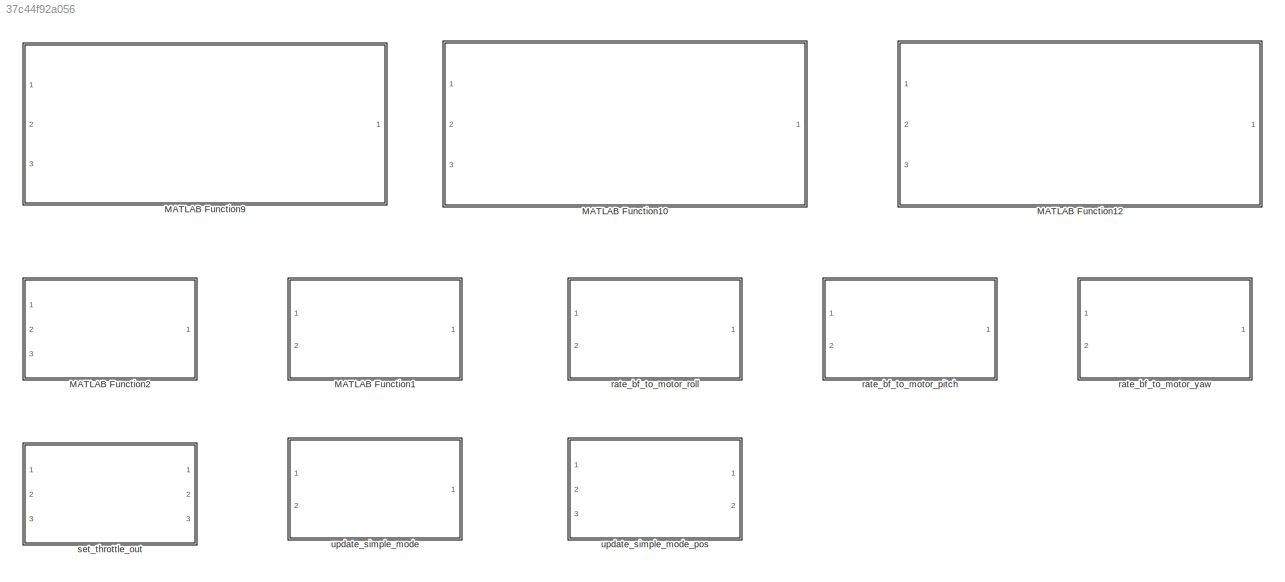
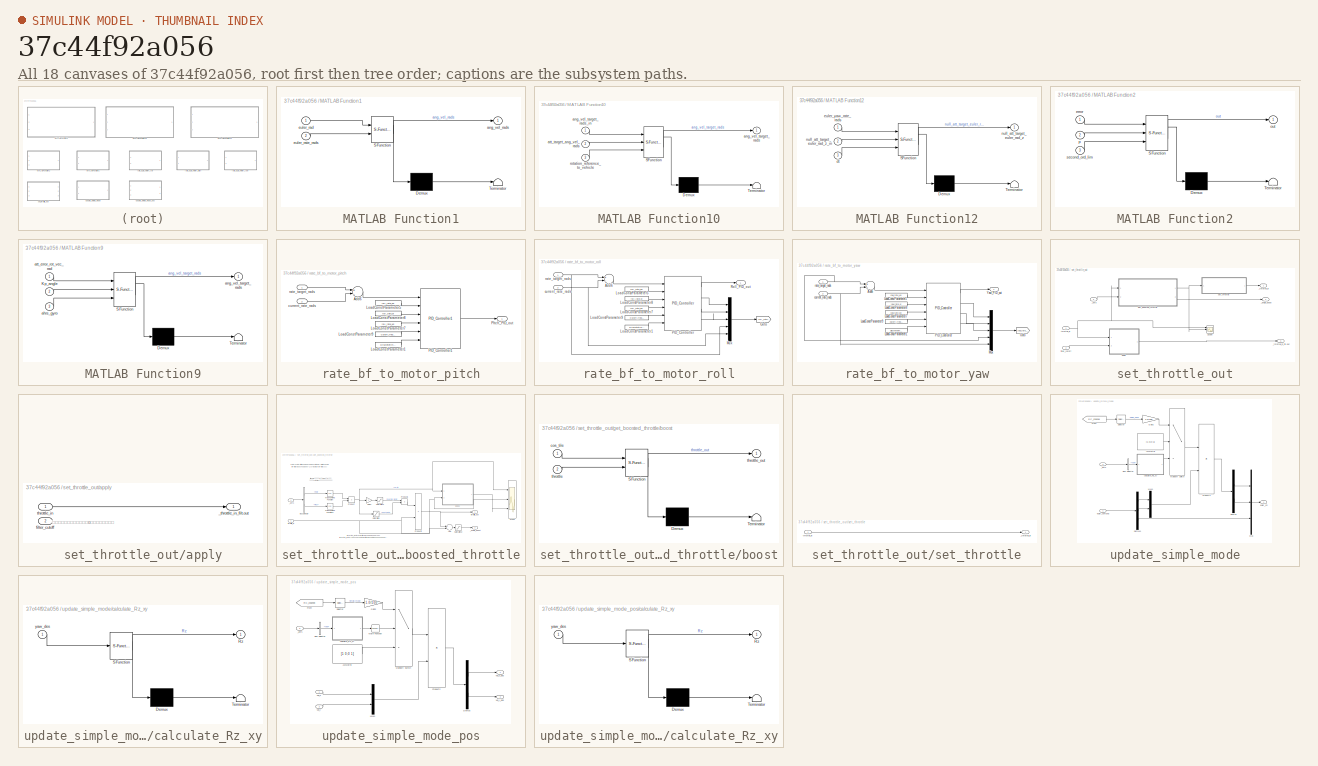
[diagram: thumbnail index - all 18 canvases of the model, root first then tree order]
MODEL slx_37c44f92a056
KIND library
BLOCK [SubSystem] MATLAB Function1
  ErrorFcn = Stateflow.Translate.translate
  PermitHierarchicalResolution = ExplicitOnly
  Ports = [2, 1]
  RequestExecContextInheritance = off
  SFBlockType = MATLAB Function
  TreatAsAtomicUnit = on
BLOCK [Demux] MATLAB Function1/ Demux 
  Outputs = 1
  Ports = [1, 1]
BLOCK [S-Function] MATLAB Function1/ SFunction 
  EnableBusSupport = off
  FunctionName = sf_sfun
  PortCounts = [2 2]
  Ports = [2, 2]
  Tag = Stateflow S-Function Lib_AC_AttitudeControl 2
BLOCK [Terminator] MATLAB Function1/ Terminator 
BLOCK [Outport] MATLAB Function1/ang_vel_rads
  IconDisplay = Port number
BLOCK [Inport] MATLAB Function1/euler_rad
  IconDisplay = Port number
BLOCK [Inport] MATLAB Function1/euler_rate_rads
  IconDisplay = Port number
  Port = 2
BLOCK [SubSystem] MATLAB Function10
  ErrorFcn = Stateflow.Translate.translate
  PermitHierarchicalResolution = ExplicitOnly
  Ports = [3, 1]
  RequestExecContextInheritance = off
  SFBlockType = MATLAB Function
  TreatAsAtomicUnit = on
BLOCK [Demux] MATLAB Function10/ Demux 
  Outputs = 1
  Ports = [1, 1]
BLOCK [S-Function] MATLAB Function10/ SFunction 
  EnableBusSupport = off
  FunctionName = sf_sfun
  PortCounts = [3 2]
  Ports = [3, 2]
  Tag = Stateflow S-Function Lib_AC_AttitudeControl 4
BLOCK [Terminator] MATLAB Function10/ Terminator 
BLOCK [Outport] MATLAB Function10/ang_vel_target_rads
  IconDisplay = Port number
BLOCK [Inport] MATLAB Function10/ang_vel_target_rads_in
  IconDisplay = Port number
BLOCK [Inport] MATLAB Function10/att_target_ang_vel_rads
  IconDisplay = Port number
  Port = 2
BLOCK [Inport] MATLAB Function10/rotation_reference_to_vehicle
  IconDisplay = Port number
  Port = 3
BLOCK [SubSystem] MATLAB Function12
  ErrorFcn = Stateflow.Translate.translate
  PermitHierarchicalResolution = ExplicitOnly
  Ports = [3, 1]
  RequestExecContextInheritance = off
  SFBlockType = MATLAB Function
  TreatAsAtomicUnit = on
BLOCK [Demux] MATLAB Function12/ Demux 
  Outputs = 1
  Ports = [1, 1]
BLOCK [S-Function] MATLAB Function12/ SFunction 
  EnableBusSupport = off
  FunctionName = sf_sfun
  PortCounts = [3 2]
  Ports = [3, 2]
  Tag = Stateflow S-Function Lib_AC_AttitudeControl 14
BLOCK [Terminator] MATLAB Function12/ Terminator 
BLOCK [Inport] MATLAB Function12/dt
  IconDisplay = Port number
  Port = 3
BLOCK [Inport] MATLAB Function12/euler_yaw_rate_rads
  IconDisplay = Port number
BLOCK [Outport] MATLAB Function12/null_att_target_euler_rad_z
  IconDisplay = Port number
BLOCK [Inport] MATLAB Function12/null_att_target_euler_rad_z_in
  IconDisplay = Port number
  Port = 2
BLOCK [SubSystem] MATLAB Function2
  ErrorFcn = Stateflow.Translate.translate
  PermitHierarchicalResolution = ExplicitOnly
  Ports = [3, 1]
  RequestExecContextInheritance = off
  SFBlockType = MATLAB Function
  TreatAsAtomicUnit = on
BLOCK [Demux] MATLAB Function2/ Demux 
  Outputs = 1
  Ports = [1, 1]
BLOCK [S-Function] MATLAB Function2/ SFunction 
  EnableBusSupport = off
  FunctionName = sf_sfun
  PortCounts = [3 2]
  Ports = [3, 2]
  Tag = Stateflow S-Function Lib_AC_AttitudeControl 3
BLOCK [Terminator] MATLAB Function2/ Terminator 
BLOCK [Inport] MATLAB Function2/error
  IconDisplay = Port number
BLOCK [Outport] MATLAB Function2/out
  IconDisplay = Port number
BLOCK [Inport] MATLAB Function2/p
  IconDisplay = Port number
  Port = 2
BLOCK [Inport] MATLAB Function2/second_ord_lim
  IconDisplay = Port number
  Port = 3
BLOCK [SubSystem] MATLAB Function9
  ErrorFcn = Stateflow.Translate.translate
  PermitHierarchicalResolution = ExplicitOnly
  Ports = [3, 1]
  RequestExecContextInheritance = off
  SFBlockType = MATLAB Function
  TreatAsAtomicUnit = on
BLOCK [Demux] MATLAB Function9/ Demux 
  Outputs = 1
  Ports = [1, 1]
BLOCK [S-Function] MATLAB Function9/ SFunction 
  EnableBusSupport = off
  FunctionName = sf_sfun
  PortCounts = [3 2]
  Ports = [3, 2]
  Tag = Stateflow S-Function Lib_AC_AttitudeControl 1
BLOCK [Terminator] MATLAB Function9/ Terminator 
BLOCK [Inport] MATLAB Function9/Kp_angle
  IconDisplay = Port number
  Port = 2
BLOCK [Inport] MATLAB Function9/ahrs_gyro
  IconDisplay = Port number
  Port = 3
BLOCK [Outport] MATLAB Function9/ang_vel_target_rads
  IconDisplay = Port number
BLOCK [Inport] MATLAB Function9/att_error_rot_vec_rad
  IconDisplay = Port number
BLOCK [SubSystem] rate_bf_to_motor_pitch
  Ports = [2, 1]
  RequestExecContextInheritance = off
BLOCK [Sum] rate_bf_to_motor_pitch/Add6
  InputSameDT = off
  Inputs = +-
  OutDataTypeStr = Inherit: Inherit via internal rule
  Ports = [2, 1]
  SaturateOnIntegerOverflow = off
BLOCK [Constant] rate_bf_to_motor_pitch/LoadConstParameter1
  SampleTime = -1
  Value = Discretetime_400Hz
BLOCK [Constant] rate_bf_to_motor_pitch/LoadConstParameter5
  SampleTime = -1
  Value = roll_rate_kp
BLOCK [Constant] rate_bf_to_motor_pitch/LoadConstParameter7
  SampleTime = -1
  Value = roll_rate_kd
BLOCK [Constant] rate_bf_to_motor_pitch/LoadConstParameter8
  SampleTime = -1
  Value = roll_rate_ki
BLOCK [Constant] rate_bf_to_motor_pitch/LoadConstParameter9
  SampleTime = -1
  Value = Cutoff_frequency_roll
BLOCK [Reference] rate_bf_to_motor_pitch/PID_Controller1  REF=Lib_AC_PID/PID_Controller1
  Description = PI控制器。
  Ports = [6, 1]
  SourceBlock = Lib_AC_PID/PID_Controller1
  SourceType = SubSystem
BLOCK [Outport] rate_bf_to_motor_pitch/PItch_PID_out
  IconDisplay = Port number
BLOCK [Inport] rate_bf_to_motor_pitch/current_rate_rads
  IconDisplay = Port number
  Port = 2
BLOCK [Inport] rate_bf_to_motor_pitch/rate_target_rads
  IconDisplay = Port number
BLOCK [SubSystem] rate_bf_to_motor_roll
  Ports = [2, 1]
  RequestExecContextInheritance = off
BLOCK [Sum] rate_bf_to_motor_roll/Add6
  InputSameDT = off
  Inputs = +-
  OutDataTypeStr = Inherit: Inherit via internal rule
  Ports = [2, 1]
  SaturateOnIntegerOverflow = off
BLOCK [Goto] rate_bf_to_motor_roll/Goto
  GotoTag = roll_rate_kpid_out
  TagVisibility = global
BLOCK [Constant] rate_bf_to_motor_roll/LoadConstParameter1
  SampleTime = -1
  Value = Discretetime_400Hz
BLOCK [Constant] rate_bf_to_motor_roll/LoadConstParameter5
  SampleTime = -1
  Value = roll_rate_kp
BLOCK [Constant] rate_bf_to_motor_roll/LoadConstParameter7
  SampleTime = -1
  Value = roll_rate_kd
BLOCK [Constant] rate_bf_to_motor_roll/LoadConstParameter8
  SampleTime = -1
  Value = roll_rate_ki
BLOCK [Constant] rate_bf_to_motor_roll/LoadConstParameter9
  SampleTime = -1
  Value = Cutoff_frequency_roll
BLOCK [Mux] rate_bf_to_motor_roll/Mux
  DisplayOption = bar
  Inputs = 5
  Ports = [5, 1]
BLOCK [Reference] rate_bf_to_motor_roll/PID_Controller  REF=Lib_AC_PID/PID_Controller
  Description = PI控制器。
  Ports = [6, 4]
  SourceBlock = Lib_AC_PID/PID_Controller
  SourceType = SubSystem
BLOCK [Outport] rate_bf_to_motor_roll/Roll_PID_out
  IconDisplay = Port number
BLOCK [Inport] rate_bf_to_motor_roll/current_rate_rads
  IconDisplay = Port number
  Port = 2
BLOCK [Inport] rate_bf_to_motor_roll/rate_target_rads
  IconDisplay = Port number
BLOCK [SubSystem] rate_bf_to_motor_yaw
  Ports = [2, 1]
  RequestExecContextInheritance = off
BLOCK [Sum] rate_bf_to_motor_yaw/Add6
  InputSameDT = off
  Inputs = +-
  OutDataTypeStr = Inherit: Inherit via internal rule
  Ports = [2, 1]
  SaturateOnIntegerOverflow = off
BLOCK [Goto] rate_bf_to_motor_yaw/Goto
  GotoTag = yaw_rate_kpid_out
  TagVisibility = global
BLOCK [Constant] rate_bf_to_motor_yaw/LoadConstParameter1
  SampleTime = -1
  Value = Discretetime_400Hz
BLOCK [Constant] rate_bf_to_motor_yaw/LoadConstParameter5
  SampleTime = -1
  Value = yaw_rate_kp
BLOCK [Constant] rate_bf_to_motor_yaw/LoadConstParameter7
  SampleTime = -1
  Value = yaw_rate_kd
BLOCK [Constant] rate_bf_to_motor_yaw/LoadConstParameter8
  SampleTime = -1
  Value = yaw_rate_ki
BLOCK [Constant] rate_bf_to_motor_yaw/LoadConstParameter9
  SampleTime = -1
  Value = Cutoff_frequency_yaw
BLOCK [Mux] rate_bf_to_motor_yaw/Mux
  DisplayOption = bar
  Inputs = 5
  Ports = [5, 1]
BLOCK [Reference] rate_bf_to_motor_yaw/PID_Controller  REF=Lib_AC_PID/PID_Controller
  Description = PI控制器。
  Ports = [6, 4]
  SourceBlock = Lib_AC_PID/PID_Controller
  SourceType = SubSystem
BLOCK [Outport] rate_bf_to_motor_yaw/Yaw_PID_out
  IconDisplay = Port number
BLOCK [Inport] rate_bf_to_motor_yaw/current_rate_rads
  IconDisplay = Port number
  Port = 2
BLOCK [Inport] rate_bf_to_motor_yaw/rate_target_rads
  IconDisplay = Port number
BLOCK [SubSystem] set_throttle_out
  Ports = [3, 3]
  RequestExecContextInheritance = off
BLOCK [Scope] set_throttle_out/Scope
  Floating = off
  NumInputPorts = 3
  Ports = [3]
  SaveName = ScopeData17
  ShowLegends = off
  YMax = 5~5~5
  YMin = -5~-5~-5
BLOCK [Inport] set_throttle_out/_ahrs
  IconDisplay = Port number
  Port = 3
BLOCK [Outport] set_throttle_out/_angle_boost
  IconDisplay = Port number
  Port = 2
BLOCK [Outport] set_throttle_out/_throttle_in
  IconDisplay = Port number
BLOCK [Outport] set_throttle_out/_throttle_in_filt.out
  IconDisplay = Port number
  Port = 3
BLOCK [SubSystem] set_throttle_out/apply
  Ports = [2, 1]
  RequestExecContextInheritance = off
BLOCK [Outport] set_throttle_out/apply/_throttle_in_filt.out
  IconDisplay = Port number
BLOCK [Inport] set_throttle_out/apply/filter_cutoff
  IconDisplay = Port number
  Port = 2
BLOCK [Inport] set_throttle_out/apply/throttle_in
  IconDisplay = Port number
BLOCK [Inport] set_throttle_out/filter_cutoff
  IconDisplay = Port number
  Port = 2
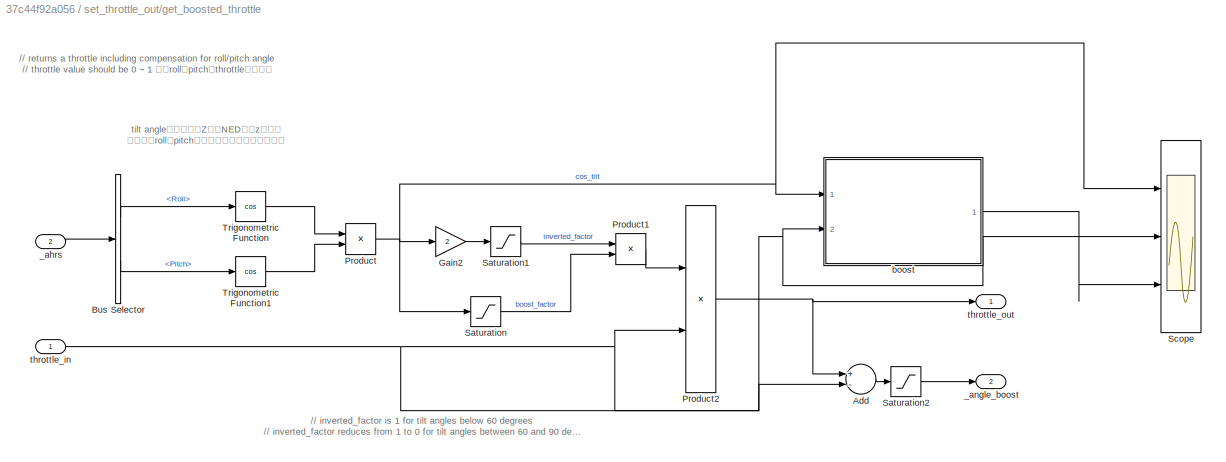
BLOCK [SubSystem] set_throttle_out/get_boosted_throttle
  Ports = [2, 2]
  RequestExecContextInheritance = off
BLOCK [Sum] set_throttle_out/get_boosted_throttle/Add
  InputSameDT = off
  Inputs = +-
  OutDataTypeStr = Inherit: Inherit via internal rule
  Ports = [2, 1]
  SaturateOnIntegerOverflow = off
BLOCK [BusSelector] set_throttle_out/get_boosted_throttle/Bus Selector
  OutputSignals = NEDState.Attitude.Roll,NEDState.Attitude.Pitch
  Ports = [1, 2]
BLOCK [Gain] set_throttle_out/get_boosted_throttle/Gain2
  Gain = 2
  OutDataTypeStr = Inherit: Inherit via internal rule
  ParamDataTypeStr = Inherit: Inherit via internal rule
  SaturateOnIntegerOverflow = off
BLOCK [Product] set_throttle_out/get_boosted_throttle/Product
  InputSameDT = off
  OutDataTypeStr = Inherit: Inherit via internal rule
  Ports = [2, 1]
  RndMeth = Floor
  SaturateOnIntegerOverflow = off
BLOCK [Product] set_throttle_out/get_boosted_throttle/Product1
  InputSameDT = off
  OutDataTypeStr = Inherit: Inherit via internal rule
  Ports = [2, 1]
  RndMeth = Floor
  SaturateOnIntegerOverflow = off
BLOCK [Product] set_throttle_out/get_boosted_throttle/Product2
  InputSameDT = off
  OutDataTypeStr = Inherit: Inherit via internal rule
  Ports = [2, 1]
  RndMeth = Floor
  SaturateOnIntegerOverflow = off
BLOCK [Saturate] set_throttle_out/get_boosted_throttle/Saturation
  InputPortMap = u0
  LowerLimit = 0.5
  Ports = [1, 1]
  UpperLimit = 1
BLOCK [Saturate] set_throttle_out/get_boosted_throttle/Saturation1
  InputPortMap = u0
  LowerLimit = 0
  Ports = [1, 1]
  UpperLimit = 1
BLOCK [Saturate] set_throttle_out/get_boosted_throttle/Saturation2
  InputPortMap = u0
  LowerLimit = -1
  Ports = [1, 1]
  UpperLimit = 1
BLOCK [Scope] set_throttle_out/get_boosted_throttle/Scope
  Floating = off
  NumInputPorts = 3
  Ports = [3]
  SaveName = ScopeData6
  ShowLegends = off
  YMax = 5~5~5
  YMin = -5~-5~-5
BLOCK [Trigonometry] set_throttle_out/get_boosted_throttle/Trigonometric Function
  Operator = cos
  Ports = [1, 1]
BLOCK [Trigonometry] set_throttle_out/get_boosted_throttle/Trigonometric Function1
  Operator = cos
  Ports = [1, 1]
BLOCK [Inport] set_throttle_out/get_boosted_throttle/_ahrs
  IconDisplay = Port number
  Port = 2
BLOCK [Outport] set_throttle_out/get_boosted_throttle/_angle_boost
  IconDisplay = Port number
  Port = 2
BLOCK [SubSystem] set_throttle_out/get_boosted_throttle/boost
  ErrorFcn = Stateflow.Translate.translate
  PermitHierarchicalResolution = ExplicitOnly
  Ports = [2, 1]
  RequestExecContextInheritance = off
  SFBlockType = Chart
  TreatAsAtomicUnit = on
BLOCK [Demux] set_throttle_out/get_boosted_throttle/boost/ Demux 
  Outputs = 1
  Ports = [1, 1]
BLOCK [S-Function] set_throttle_out/get_boosted_throttle/boost/ SFunction 
  EnableBusSupport = on
  FunctionName = sf_sfun
  PortCounts = [2 2]
  Ports = [2, 2]
  Tag = Stateflow S-Function Lib_AC_AttitudeControl 5
BLOCK [Terminator] set_throttle_out/get_boosted_throttle/boost/ Terminator 
BLOCK [Inport] set_throttle_out/get_boosted_throttle/boost/cos_tile
  IconDisplay = Port number
BLOCK [Inport] set_throttle_out/get_boosted_throttle/boost/throttle
  IconDisplay = Port number
  Port = 2
BLOCK [Outport] set_throttle_out/get_boosted_throttle/boost/throttle_out
  IconDisplay = Port number
BLOCK [Inport] set_throttle_out/get_boosted_throttle/throttle_in
  IconDisplay = Port number
BLOCK [Outport] set_throttle_out/get_boosted_throttle/throttle_out
  IconDisplay = Port number
BLOCK [SubSystem] set_throttle_out/set_throttle
  Ports = [1, 1]
  RequestExecContextInheritance = off
BLOCK [Outport] set_throttle_out/set_throttle/_throttle_in
  IconDisplay = Port number
BLOCK [Inport] set_throttle_out/set_throttle/throttle_in
  IconDisplay = Port number
BLOCK [Inport] set_throttle_out/throttle_in
  IconDisplay = Port number
BLOCK [SubSystem] update_simple_mode
  Ports = [2, 1]
  RequestExecContextInheritance = off
BLOCK [Constant] update_simple_mode/AccMatrix
  Value = [1 0;0 1]
BLOCK [BusSelector] update_simple_mode/Bus Selector
  OutputSignals = NEDState.Attitude.Yaw
  Ports = [1, 1]
BLOCK [Demux] update_simple_mode/Demux
  DisplayOption = bar
  Outputs = 2
  Ports = [1, 2]
BLOCK [Demux] update_simple_mode/Demux1
  DisplayOption = bar
  Outputs = 3
  Ports = [1, 3]
BLOCK [From] update_simple_mode/From
  GotoTag = RC_channel
  TagVisibility = global
BLOCK [Gain] update_simple_mode/Gain2
  Gain = 1.0/100
  OutDataTypeStr = Inherit: Inherit via internal rule
  ParamDataTypeStr = Inherit: Inherit via internal rule
  SaturateOnIntegerOverflow = off
BLOCK [MultiPortSwitch] update_simple_mode/Multiport Switch
  InputSameDT = off
  Inputs = 2
  Ports = [3, 1]
  SaturateOnIntegerOverflow = off
BLOCK [Mux] update_simple_mode/Mux
  DisplayOption = bar
  Inputs = 3
  Ports = [3, 1]
BLOCK [Mux] update_simple_mode/Mux1
  DisplayOption = bar
  Inputs = 2
  Ports = [2, 1]
BLOCK [Product] update_simple_mode/Product2
  InputSameDT = off
  Multiplication = Matrix(*)
  OutDataTypeStr = Inherit: Inherit via internal rule
  Ports = [2, 1]
  RndMeth = Floor
  SaturateOnIntegerOverflow = off
BLOCK [Selector] update_simple_mode/Selector
  Indices = [6]
  InputPortWidth = 6
  Ports = [1, 1]
BLOCK [Inport] update_simple_mode/_ahrs
  IconDisplay = Port number
  Port = 2
BLOCK [SubSystem] update_simple_mode/calculate_Rz_xy
  ErrorFcn = Stateflow.Translate.translate
  PermitHierarchicalResolution = ExplicitOnly
  Ports = [1, 1]
  RequestExecContextInheritance = off
  SFBlockType = MATLAB Function
  TreatAsAtomicUnit = on
BLOCK [Demux] update_simple_mode/calculate_Rz_xy/ Demux 
  Outputs = 1
  Ports = [1, 1]
BLOCK [S-Function] update_simple_mode/calculate_Rz_xy/ SFunction 
  EnableBusSupport = on
  FunctionName = sf_sfun
  PortCounts = [1 2]
  Ports = [1, 2]
  Tag = Stateflow S-Function Lib_AC_AttitudeControl 7
BLOCK [Terminator] update_simple_mode/calculate_Rz_xy/ Terminator 
BLOCK [Outport] update_simple_mode/calculate_Rz_xy/Rz
  IconDisplay = Port number
BLOCK [Inport] update_simple_mode/calculate_Rz_xy/yaw_des
  IconDisplay = Port number
BLOCK [Outport] update_simple_mode/euler_cd
  IconDisplay = Port number
BLOCK [Inport] update_simple_mode/euler_comand
  IconDisplay = Port number
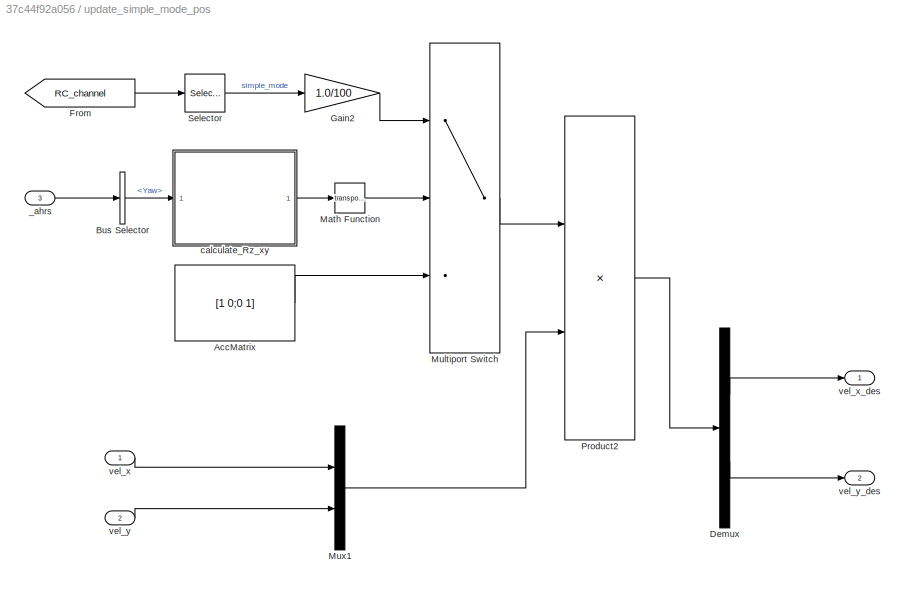
BLOCK [SubSystem] update_simple_mode_pos
  Ports = [3, 2]
  RequestExecContextInheritance = off
BLOCK [Constant] update_simple_mode_pos/AccMatrix
  Value = [1 0;0 1]
BLOCK [BusSelector] update_simple_mode_pos/Bus Selector
  OutputSignals = NEDState.Attitude.Yaw
  Ports = [1, 1]
BLOCK [Demux] update_simple_mode_pos/Demux
  DisplayOption = bar
  Outputs = 2
  Ports = [1, 2]
BLOCK [From] update_simple_mode_pos/From
  GotoTag = RC_channel
  TagVisibility = global
BLOCK [Gain] update_simple_mode_pos/Gain2
  Gain = 1.0/100
  OutDataTypeStr = Inherit: Inherit via internal rule
  ParamDataTypeStr = Inherit: Inherit via internal rule
  SaturateOnIntegerOverflow = off
BLOCK [Math] update_simple_mode_pos/Math Function
  Operator = transpose
  Ports = [1, 1]
BLOCK [MultiPortSwitch] update_simple_mode_pos/Multiport Switch
  InputSameDT = off
  Inputs = 2
  Ports = [3, 1]
  SaturateOnIntegerOverflow = off
BLOCK [Mux] update_simple_mode_pos/Mux1
  DisplayOption = bar
  Inputs = 2
  Ports = [2, 1]
BLOCK [Product] update_simple_mode_pos/Product2
  InputSameDT = off
  Multiplication = Matrix(*)
  OutDataTypeStr = Inherit: Inherit via internal rule
  Ports = [2, 1]
  RndMeth = Floor
  SaturateOnIntegerOverflow = off
BLOCK [Selector] update_simple_mode_pos/Selector
  Indices = [6]
  InputPortWidth = 6
  Ports = [1, 1]
BLOCK [Inport] update_simple_mode_pos/_ahrs
  IconDisplay = Port number
  Port = 3
BLOCK [SubSystem] update_simple_mode_pos/calculate_Rz_xy
  ErrorFcn = Stateflow.Translate.translate
  PermitHierarchicalResolution = ExplicitOnly
  Ports = [1, 1]
  RequestExecContextInheritance = off
  SFBlockType = MATLAB Function
  TreatAsAtomicUnit = on
BLOCK [Demux] update_simple_mode_pos/calculate_Rz_xy/ Demux 
  Outputs = 1
  Ports = [1, 1]
BLOCK [S-Function] update_simple_mode_pos/calculate_Rz_xy/ SFunction 
  EnableBusSupport = off
  FunctionName = sf_sfun
  PortCounts = [1 2]
  Ports = [1, 2]
  Tag = Stateflow S-Function Lib_AC_AttitudeControl 8
BLOCK [Terminator] update_simple_mode_pos/calculate_Rz_xy/ Terminator 
BLOCK [Outport] update_simple_mode_pos/calculate_Rz_xy/Rz
  IconDisplay = Port number
BLOCK [Inport] update_simple_mode_pos/calculate_Rz_xy/yaw_des
  IconDisplay = Port number
BLOCK [Inport] update_simple_mode_pos/vel_x
  IconDisplay = Port number
BLOCK [Outport] update_simple_mode_pos/vel_x_des
  IconDisplay = Port number
BLOCK [Inport] update_simple_mode_pos/vel_y
  IconDisplay = Port number
  Port = 2
BLOCK [Outport] update_simple_mode_pos/vel_y_des
  IconDisplay = Port number
  Port = 2
ANNOTATION set_throttle_out/apply: 经过互补滤波，截止频率为0，没看错吧。。。
ANNOTATION set_throttle_out/get_boosted_throttle: // inverted_factor is 1 for tilt angles below 60 degrees // inverted_factor reduces from 1 to 0 for tilt angles between 60 and 90 degrees
ANNOTATION set_throttle_out/get_boosted_throttle: // returns a throttle including compensation for roll/pitch angle // throttle value should be 0 ~ 1 根据roll和pitch对throttle进行补偿
ANNOTATION set_throttle_out/get_boosted_throttle: tilt angle指机体坐标Z轴与NED坐标z轴夹角 这个角与roll和pitch的关系可以通过立体几何证明
LINE rate_bf_to_motor_pitch/Add6:1 -> rate_bf_to_motor_pitch/PID_Controller1:1
LINE rate_bf_to_motor_pitch/LoadConstParameter1:1 -> rate_bf_to_motor_pitch/PID_Controller1:6
LINE rate_bf_to_motor_pitch/LoadConstParameter5:1 -> rate_bf_to_motor_pitch/PID_Controller1:2
LINE rate_bf_to_motor_pitch/LoadConstParameter7:1 -> rate_bf_to_motor_pitch/PID_Controller1:4
LINE rate_bf_to_motor_pitch/LoadConstParameter8:1 -> rate_bf_to_motor_pitch/PID_Controller1:3
LINE rate_bf_to_motor_pitch/LoadConstParameter9:1 -> rate_bf_to_motor_pitch/PID_Controller1:5
LINE rate_bf_to_motor_pitch/PID_Controller1:1 -> rate_bf_to_motor_pitch/PItch_PID_out:1
LINE rate_bf_to_motor_pitch/current_rate_rads:1 -> rate_bf_to_motor_pitch/Add6:2
LINE rate_bf_to_motor_pitch/rate_target_rads:1 -> rate_bf_to_motor_pitch/Add6:1
LINE rate_bf_to_motor_roll/Add6:1 -> rate_bf_to_motor_roll/PID_Controller:1
LINE rate_bf_to_motor_roll/LoadConstParameter1:1 -> rate_bf_to_motor_roll/PID_Controller:6
LINE rate_bf_to_motor_roll/LoadConstParameter5:1 -> rate_bf_to_motor_roll/PID_Controller:2
LINE rate_bf_to_motor_roll/LoadConstParameter7:1 -> rate_bf_to_motor_roll/PID_Controller:4
LINE rate_bf_to_motor_roll/LoadConstParameter8:1 -> rate_bf_to_motor_roll/PID_Controller:3
LINE rate_bf_to_motor_roll/LoadConstParameter9:1 -> rate_bf_to_motor_roll/PID_Controller:5
LINE rate_bf_to_motor_roll/Mux:1 -> rate_bf_to_motor_roll/Goto:1
LINE rate_bf_to_motor_roll/PID_Controller:1 -> rate_bf_to_motor_roll/Roll_PID_out:1
LINE rate_bf_to_motor_roll/PID_Controller:2 -> rate_bf_to_motor_roll/Mux:1
LINE rate_bf_to_motor_roll/PID_Controller:3 -> rate_bf_to_motor_roll/Mux:2
LINE rate_bf_to_motor_roll/PID_Controller:4 -> rate_bf_to_motor_roll/Mux:3
NET rate_bf_to_motor_roll/current_rate_rads:1 -> rate_bf_to_motor_roll/Add6:2, rate_bf_to_motor_roll/Mux:5
NET rate_bf_to_motor_roll/rate_target_rads:1 -> rate_bf_to_motor_roll/Add6:1, rate_bf_to_motor_roll/Mux:4
LINE rate_bf_to_motor_yaw/Add6:1 -> rate_bf_to_motor_yaw/PID_Controller:1
LINE rate_bf_to_motor_yaw/LoadConstParameter1:1 -> rate_bf_to_motor_yaw/PID_Controller:6
LINE rate_bf_to_motor_yaw/LoadConstParameter5:1 -> rate_bf_to_motor_yaw/PID_Controller:2
LINE rate_bf_to_motor_yaw/LoadConstParameter7:1 -> rate_bf_to_motor_yaw/PID_Controller:4
LINE rate_bf_to_motor_yaw/LoadConstParameter8:1 -> rate_bf_to_motor_yaw/PID_Controller:3
LINE rate_bf_to_motor_yaw/LoadConstParameter9:1 -> rate_bf_to_motor_yaw/PID_Controller:5
LINE rate_bf_to_motor_yaw/Mux:1 -> rate_bf_to_motor_yaw/Goto:1
LINE rate_bf_to_motor_yaw/PID_Controller:1 -> rate_bf_to_motor_yaw/Yaw_PID_out:1
LINE rate_bf_to_motor_yaw/PID_Controller:2 -> rate_bf_to_motor_yaw/Mux:1
LINE rate_bf_to_motor_yaw/PID_Controller:3 -> rate_bf_to_motor_yaw/Mux:2
LINE rate_bf_to_motor_yaw/PID_Controller:4 -> rate_bf_to_motor_yaw/Mux:3
NET rate_bf_to_motor_yaw/current_rate_rads:1 -> rate_bf_to_motor_yaw/Add6:2, rate_bf_to_motor_yaw/Mux:5
NET rate_bf_to_motor_yaw/rate_target_rads:1 -> rate_bf_to_motor_yaw/Add6:1, rate_bf_to_motor_yaw/Mux:4
LINE set_throttle_out/_ahrs:1 -> set_throttle_out/get_boosted_throttle:2
LINE set_throttle_out/apply/throttle_in:1 -> set_throttle_out/apply/_throttle_in_filt.out:1
LINE set_throttle_out/apply:1 -> set_throttle_out/_throttle_in_filt.out:1
LINE set_throttle_out/filter_cutoff:1 -> set_throttle_out/apply:2
LINE set_throttle_out/get_boosted_throttle/Add:1 -> set_throttle_out/get_boosted_throttle/Saturation2:1
LINE set_throttle_out/get_boosted_throttle/Bus Selector:1 -> set_throttle_out/get_boosted_throttle/Trigonometric Function:1
LINE set_throttle_out/get_boosted_throttle/Bus Selector:2 -> set_throttle_out/get_boosted_throttle/Trigonometric Function1:1
LINE set_throttle_out/get_boosted_throttle/Gain2:1 -> set_throttle_out/get_boosted_throttle/Saturation1:1
LINE set_throttle_out/get_boosted_throttle/Product1:1 -> set_throttle_out/get_boosted_throttle/Product2:1
NET set_throttle_out/get_boosted_throttle/Product2:1 -> set_throttle_out/get_boosted_throttle/Add:1, set_throttle_out/get_boosted_throttle/throttle_out:1
NET set_throttle_out/get_boosted_throttle/Product:1 -> set_throttle_out/get_boosted_throttle/Gain2:1, set_throttle_out/get_boosted_throttle/Saturation:1, set_throttle_out/get_boosted_throttle/Scope:1, set_throttle_out/get_boosted_throttle/boost:1
LINE set_throttle_out/get_boosted_throttle/Saturation1:1 -> set_throttle_out/get_boosted_throttle/Product1:1
LINE set_throttle_out/get_boosted_throttle/Saturation2:1 -> set_throttle_out/get_boosted_throttle/_angle_boost:1
LINE set_throttle_out/get_boosted_throttle/Saturation:1 -> set_throttle_out/get_boosted_throttle/Product1:2
LINE set_throttle_out/get_boosted_throttle/Trigonometric Function1:1 -> set_throttle_out/get_boosted_throttle/Product:2
LINE set_throttle_out/get_boosted_throttle/Trigonometric Function:1 -> set_throttle_out/get_boosted_throttle/Product:1
LINE set_throttle_out/get_boosted_throttle/_ahrs:1 -> set_throttle_out/get_boosted_throttle/Bus Selector:1
LINE set_throttle_out/get_boosted_throttle/boost:1 -> set_throttle_out/get_boosted_throttle/Scope:3
NET set_throttle_out/get_boosted_throttle/throttle_in:1 -> set_throttle_out/get_boosted_throttle/Add:2, set_throttle_out/get_boosted_throttle/Product2:2, set_throttle_out/get_boosted_throttle/Scope:2, set_throttle_out/get_boosted_throttle/boost:2
NET set_throttle_out/get_boosted_throttle:1 -> set_throttle_out/Scope:2, set_throttle_out/set_throttle:1
LINE set_throttle_out/get_boosted_throttle:2 -> set_throttle_out/_angle_boost:1
LINE set_throttle_out/set_throttle/throttle_in:1 -> set_throttle_out/set_throttle/_throttle_in:1
LINE set_throttle_out/set_throttle:1 -> set_throttle_out/_throttle_in:1
NET set_throttle_out/throttle_in:1 -> set_throttle_out/Scope:1, set_throttle_out/apply:1, set_throttle_out/get_boosted_throttle:1
LINE update_simple_mode/AccMatrix:1 -> update_simple_mode/Multiport Switch:2
LINE update_simple_mode/Bus Selector:1 -> update_simple_mode/calculate_Rz_xy:1
LINE update_simple_mode/Demux1:1 -> update_simple_mode/Mux1:1
LINE update_simple_mode/Demux1:2 -> update_simple_mode/Mux1:2
LINE update_simple_mode/Demux1:3 -> update_simple_mode/Mux:3
LINE update_simple_mode/Demux:1 -> update_simple_mode/Mux:1
LINE update_simple_mode/Demux:2 -> update_simple_mode/Mux:2
LINE update_simple_mode/From:1 -> update_simple_mode/Selector:1
LINE update_simple_mode/Gain2:1 -> update_simple_mode/Multiport Switch:1
LINE update_simple_mode/Multiport Switch:1 -> update_simple_mode/Product2:1
LINE update_simple_mode/Mux1:1 -> update_simple_mode/Product2:2
LINE update_simple_mode/Mux:1 -> update_simple_mode/euler_cd:1
LINE update_simple_mode/Product2:1 -> update_simple_mode/Demux:1
LINE update_simple_mode/Selector:1 -> update_simple_mode/Gain2:1
LINE update_simple_mode/_ahrs:1 -> update_simple_mode/Bus Selector:1
LINE update_simple_mode/calculate_Rz_xy:1 -> update_simple_mode/Multiport Switch:3
LINE update_simple_mode/euler_comand:1 -> update_simple_mode/Demux1:1
LINE update_simple_mode_pos/AccMatrix:1 -> update_simple_mode_pos/Multiport Switch:3
LINE update_simple_mode_pos/Bus Selector:1 -> update_simple_mode_pos/calculate_Rz_xy:1
LINE update_simple_mode_pos/Demux:1 -> update_simple_mode_pos/vel_x_des:1
LINE update_simple_mode_pos/Demux:2 -> update_simple_mode_pos/vel_y_des:1
LINE update_simple_mode_pos/From:1 -> update_simple_mode_pos/Selector:1
LINE update_simple_mode_pos/Gain2:1 -> update_simple_mode_pos/Multiport Switch:1
LINE update_simple_mode_pos/Math Function:1 -> update_simple_mode_pos/Multiport Switch:2
LINE update_simple_mode_pos/Multiport Switch:1 -> update_simple_mode_pos/Product2:1
LINE update_simple_mode_pos/Mux1:1 -> update_simple_mode_pos/Product2:2
LINE update_simple_mode_pos/Product2:1 -> update_simple_mode_pos/Demux:1
LINE update_simple_mode_pos/Selector:1 -> update_simple_mode_pos/Gain2:1
LINE update_simple_mode_pos/_ahrs:1 -> update_simple_mode_pos/Bus Selector:1
LINE update_simple_mode_pos/calculate_Rz_xy:1 -> update_simple_mode_pos/Math Function:1
LINE update_simple_mode_pos/vel_x:1 -> update_simple_mode_pos/Mux1:1
LINE update_simple_mode_pos/vel_y:1 -> update_simple_mode_pos/Mux1:2
note: NET lines group one-source signal fan-out (src -> all destinations, sorted); 1:1 wires keep LINE
CHART MATLAB Function9 states=1 transitions=1
  STATE_LABEL 'eML_blk_kernel()'
  STATE_LABEL 'SCRIPT:\nfunction ang_vel_target_rads=update_ang_vel_target_from_att_error(att_error_rot_vec_rad,Kp_angle,ahrs_gyro)\n%% 作用：根据大地坐标系下的旋转矢量误差，通过P控制器等输出机体坐标系下速度的期望。\n\n%忽略判断语句\n% p_angle_roll=25.5;\n% p_angle_pitch=20.5;\n% p_angle_yaw=10.5;\np_angle_roll=Kp_angle(1);\np_angle_pitch=Kp_angle(2);\np_angle_yaw=Kp_angle(3);\nt_ang_vel_target_rads1 = p_angle_roll* att_error_rot_vec_rad(1);\nt_ang_vel_target_rads2 = ...<+2577ch>'
CHART MATLAB Function1 states=1 transitions=1
  STATE_LABEL 'eML_blk_kernel()'
  STATE_LABEL 'SCRIPT:\nfunction ang_vel_rads= euler_rate_to_ang_vel(euler_rad,euler_rate_rads)\n%#codegen\n% % 作用：将欧拉角的导数转化为B系下飞行器绕自身旋转的角速度。\n%\n     sin_theta = sin(euler_rad(2));\n     cos_theta =cos(euler_rad(2));\n     sin_phi = sin(euler_rad(1));\n     cos_phi = cos(euler_rad(1));\n    ang_vel_rads1 = euler_rate_rads(1) - sin_theta * euler_rate_rads(3);\n    ang_vel_rads2 = cos_phi  * euler_rate_rads(2) + sin_phi * ...<+2180ch>'
CHART MATLAB Function2 states=1 transitions=1
  STATE_LABEL 'eML_blk_kernel()'
  STATE_LABEL 'SCRIPT:\n\nfunction out=sqrt_controller(error,p,second_ord_lim)\nlinear_dist = second_ord_lim/(p*p);\n    if error > linear_dist\n        out=sqrt(2.0*second_ord_lim*(error-(linear_dist/2.0)));\n    elseif error < -linear_dist \n        out=-sqrt(2.0*second_ord_lim*(-error-(linear_dist/2.0)));\n    else \n        out=error*p;\n    end\n'
CHART MATLAB Function10 states=1 transitions=1
  STATE_LABEL 'eML_blk_kernel()'
  STATE_LABEL 'SCRIPT:\n\nfunction ang_vel_target_rads=add_angular_velocity_feedforward(ang_vel_target_rads_in,att_target_ang_vel_rads,rotation_reference_to_vehicle)\n%% 加入速率控制的前馈（前馈是以机体坐标系为参考）\n% ang_vel_target_rads1=ang_vel_target_rads_in(1)+att_target_ang_vel_rads(1);\n% ang_vel_target_rads2=ang_vel_target_rads_in(2)+att_target_ang_vel_rads(2);\n% ang_vel_target_rads3=ang_vel_target_rads_in(3)+att_target_ang_vel_ra...<+393ch>'
CHART set_throttle_out/get_boosted_throttle/boost states=3 transitions=3
  STATE_LABEL '%状态不变，输入数据就不更新，这个不解决，这个模块就无法用。。。'
  STATE_LABEL 'big_tile\nentry:\nthrottle_out=4.0*cos_tile*throttle;\n'
  STATE_LABEL 'small_tile\nentry:\nthrottle_out=throttle*1.0/cos_tile;\n'
CHART update_simple_mode/calculate_Rz_xy states=1 transitions=1
  STATE_LABEL 'eML_blk_kernel()'
  STATE_LABEL 'SCRIPT:\nfunction Rz  = Rz_xy(yaw_des)\n%#codegen\nRz=[ cos(yaw_des)  sin(yaw_des);\n    -sin(yaw_des)  cos(yaw_des)];'
CHART update_simple_mode_pos/calculate_Rz_xy states=1 transitions=1
  STATE_LABEL 'eML_blk_kernel()'
  STATE_LABEL 'SCRIPT:\nfunction Rz  = Rz_xy(yaw_des)\n%#codegen\nRz=[ cos(yaw_des)  sin(yaw_des);\n    -sin(yaw_des)  cos(yaw_des)];'
CHART MATLAB Function12 states=1 transitions=1
  STATE_LABEL 'eML_blk_kernel()'
  STATE_LABEL 'SCRIPT:\n\nfunction null_att_target_euler_rad_z=update_att_target_yaw(euler_yaw_rate_rads,null_att_target_euler_rad_z_in,dt)\nnull_att_target_euler_rad_z=null_att_target_euler_rad_z_in+euler_yaw_rate_rads * dt;'
